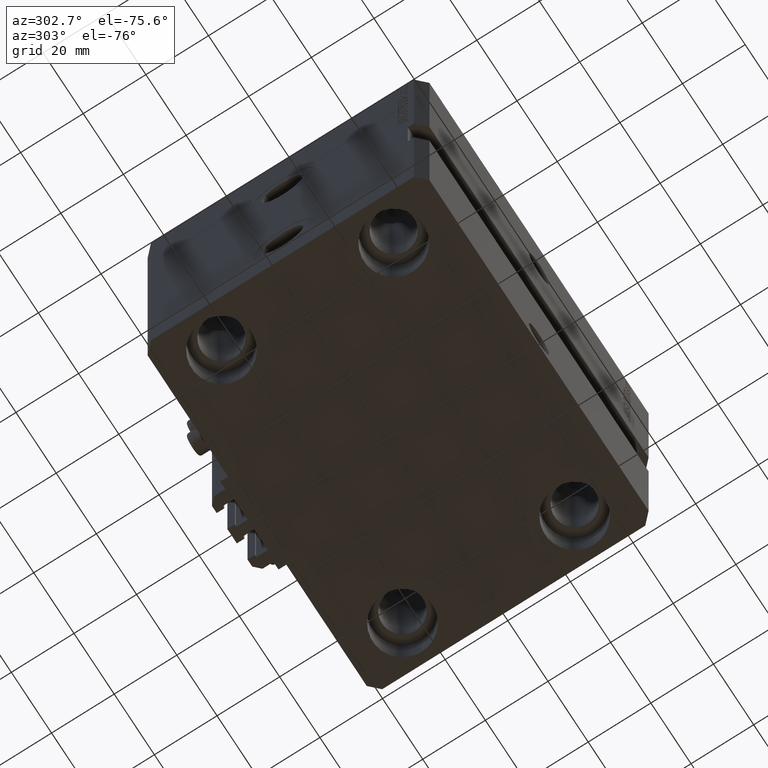
[diagram: clean part render]
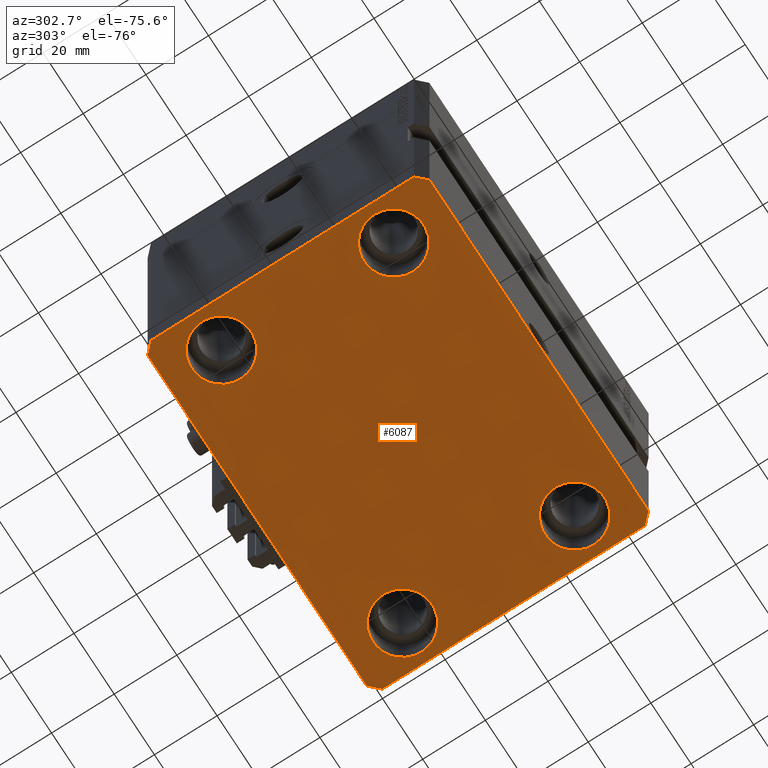
[diagram: same view with one face highlighted and labeled with its STEP entity id]
A machine part, auxiliary view. The second image highlights one B-rep face of the part: STEP entity #6087.
In plain terms, the highlighted planar face has unit normal (0, 0, 1).
Its self-contained STEP definition (entity closure, byte-faithful):
#302 = CARTESIAN_POINT ( 'NONE',  ( 57.50000000000000711, -41.99999999999998579, -105.0000000000000000 ) ) ;
#1211 = VECTOR ( 'NONE', #37455, 1000.000000000000000 ) ;
#1237 = CARTESIAN_POINT ( 'NONE',  ( 54.50000000000000711, -44.99999999999998579, -105.0000000000000000 ) ) ;
#1445 = VERTEX_POINT ( 'NONE', #13892 ) ;
#1541 = CIRCLE ( 'NONE', #40043, 9.500000000000001776 ) ;
#1914 = FACE_BOUND ( 'NONE', #43159, .T. ) ;
#2291 = DIRECTION ( 'NONE',  ( 1.000000000000000000, 0.000000000000000000, 0.000000000000000000 ) ) ;
#2296 = DIRECTION ( 'NONE',  ( -1.000000000000000000, -2.546383084002639322E-16, 0.000000000000000000 ) ) ;
#2750 = EDGE_CURVE ( 'NONE', #41896, #14180, #1541, .T. ) ;
#3483 = CARTESIAN_POINT ( 'NONE',  ( -35.50000000000000000, -27.49999999999999645, -105.0000000000000000 ) ) ;
#3873 = CARTESIAN_POINT ( 'NONE',  ( 45.00000000000000000, -27.49999999999999645, -105.0000000000000000 ) ) ;
#4046 = VECTOR ( 'NONE', #31954, 1000.000000000000000 ) ;
#4511 = DIRECTION ( 'NONE',  ( 1.000000000000000000, 1.273191542001326317E-16, 0.000000000000000000 ) ) ;
#5862 = CARTESIAN_POINT ( 'NONE',  ( 0.000000000000000000, 0.000000000000000000, -105.0000000000000000 ) ) ;
#6078 = EDGE_LOOP ( 'NONE', ( #17441, #47843 ) ) ;
#6087 = ADVANCED_FACE ( 'NONE', ( #1914, #28003, #6348, #17691, #28968 ), #10052, .F. ) ;
#6244 = DIRECTION ( 'NONE',  ( -0.000000000000000000, -0.000000000000000000, 1.000000000000000000 ) ) ;
#6348 = FACE_BOUND ( 'NONE', #6078, .T. ) ;
#6365 = AXIS2_PLACEMENT_3D ( 'NONE', #3873, #41261, #34131 ) ;
#6512 = EDGE_CURVE ( 'NONE', #14180, #41896, #43304, .T. ) ;
#6701 = CIRCLE ( 'NONE', #19258, 9.500000000000001776 ) ;
#7084 = CARTESIAN_POINT ( 'NONE',  ( -45.00000000000000000, -27.49999999999999645, -105.0000000000000000 ) ) ;
#7317 = CARTESIAN_POINT ( 'NONE',  ( -35.50000000000000000, 27.50000000000000355, -105.0000000000000000 ) ) ;
#7479 = ORIENTED_EDGE ( 'NONE', *, *, #27678, .T. ) ;
#8123 = DIRECTION ( 'NONE',  ( -0.000000000000000000, -0.000000000000000000, 1.000000000000000000 ) ) ;
#8273 = VERTEX_POINT ( 'NONE', #11953 ) ;
#8509 = CARTESIAN_POINT ( 'NONE',  ( 35.50000000000000000, -27.49999999999999645, -105.0000000000000000 ) ) ;
#8894 = CARTESIAN_POINT ( 'NONE',  ( 57.50000000000055422, 41.99999999999997868, -105.0000000000000000 ) ) ;
#9307 = DIRECTION ( 'NONE',  ( 1.000000000000000000, 0.000000000000000000, -0.000000000000000000 ) ) ;
#10052 = PLANE ( 'NONE',  #26806 ) ;
#10144 = ORIENTED_EDGE ( 'NONE', *, *, #30741, .F. ) ;
#10187 = DIRECTION ( 'NONE',  ( -0.000000000000000000, -0.000000000000000000, 1.000000000000000000 ) ) ;
#10259 = CARTESIAN_POINT ( 'NONE',  ( -54.50000000000000711, -45.00000000000000000, -105.0000000000000000 ) ) ;
#10686 = CARTESIAN_POINT ( 'NONE',  ( 54.50000000000058975, 45.00000000000002842, -105.0000000000000000 ) ) ;
#11414 = ORIENTED_EDGE ( 'NONE', *, *, #6512, .T. ) ;
#11501 = CARTESIAN_POINT ( 'NONE',  ( -54.50000000000000000, 27.50000000000000355, -105.0000000000000000 ) ) ;
#11953 = CARTESIAN_POINT ( 'NONE',  ( -57.49999999999998579, 42.00000000000000711, -105.0000000000000000 ) ) ;
#12078 = ORIENTED_EDGE ( 'NONE', *, *, #15752, .T. ) ;
#12282 = ORIENTED_EDGE ( 'NONE', *, *, #14394, .F. ) ;
#12925 = VECTOR ( 'NONE', #13927, 1000.000000000000000 ) ;
#13242 = ORIENTED_EDGE ( 'NONE', *, *, #35085, .F. ) ;
#13380 = EDGE_CURVE ( 'NONE', #29902, #32496, #45118, .T. ) ;
#13442 = LINE ( 'NONE', #39749, #12925 ) ;
#13780 = CARTESIAN_POINT ( 'NONE',  ( -45.00000000000000000, 27.50000000000000355, -105.0000000000000000 ) ) ;
#13892 = CARTESIAN_POINT ( 'NONE',  ( 54.50000000000000000, -27.49999999999999645, -105.0000000000000000 ) ) ;
#13927 = DIRECTION ( 'NONE',  ( -2.478176394252581141E-16, -1.000000000000000000, 0.000000000000000000 ) ) ;
#14180 = VERTEX_POINT ( 'NONE', #11501 ) ;
#14394 = EDGE_CURVE ( 'NONE', #8273, #31083, #13442, .T. ) ;
#15235 = VERTEX_POINT ( 'NONE', #34675 ) ;
#15600 = LINE ( 'NONE', #48379, #42963 ) ;
#15709 = EDGE_CURVE ( 'NONE', #37422, #37767, #17091, .T. ) ;
#15752 = EDGE_CURVE ( 'NONE', #1445, #35604, #6701, .T. ) ;
#17091 = LINE ( 'NONE', #10686, #26324 ) ;
#17221 = LINE ( 'NONE', #47216, #4046 ) ;
#17261 = CARTESIAN_POINT ( 'NONE',  ( -54.49999999999999289, 45.00000000000000000, -105.0000000000000000 ) ) ;
#17441 = ORIENTED_EDGE ( 'NONE', *, *, #40015, .T. ) ;
#17691 = FACE_BOUND ( 'NONE', #44034, .T. ) ;
#17914 = VERTEX_POINT ( 'NONE', #31284 ) ;
#18142 = DIRECTION ( 'NONE',  ( 0.7071067811865491270, -0.7071067811865459074, 0.000000000000000000 ) ) ;
#18482 = CARTESIAN_POINT ( 'NONE',  ( 54.50000000000000000, 27.50000000000001776, -105.0000000000000000 ) ) ;
#19258 = AXIS2_PLACEMENT_3D ( 'NONE', #24936, #10187, #40429 ) ;
#19756 = EDGE_CURVE ( 'NONE', #31083, #15235, #15600, .T. ) ;
#19816 = EDGE_CURVE ( 'NONE', #15235, #44971, #38214, .T. ) ;
#19828 = CARTESIAN_POINT ( 'NONE',  ( 57.50000000000055422, 41.99999999999997868, -105.0000000000000000 ) ) ;
#19849 = EDGE_LOOP ( 'NONE', ( #30818, #10144, #30823, #21122, #42790, #24295, #12282, #13242 ) ) ;
#21122 = ORIENTED_EDGE ( 'NONE', *, *, #35359, .F. ) ;
#22111 = DIRECTION ( 'NONE',  ( 1.000000000000000000, 0.000000000000000000, 0.000000000000000000 ) ) ;
#22138 = CIRCLE ( 'NONE', #37809, 9.500000000000001776 ) ;
#24268 = DIRECTION ( 'NONE',  ( 0.7071067811865483499, 0.7071067811865466846, 0.000000000000000000 ) ) ;
#24295 = ORIENTED_EDGE ( 'NONE', *, *, #19756, .F. ) ;
#24936 = CARTESIAN_POINT ( 'NONE',  ( 45.00000000000000000, -27.49999999999999645, -105.0000000000000000 ) ) ;
#24954 = VERTEX_POINT ( 'NONE', #18482 ) ;
#25431 = ORIENTED_EDGE ( 'NONE', *, *, #2750, .T. ) ;
#26324 = VECTOR ( 'NONE', #2296, 1000.000000000000000 ) ;
#26806 = AXIS2_PLACEMENT_3D ( 'NONE', #5862, #40049, #9307 ) ;
#27035 = AXIS2_PLACEMENT_3D ( 'NONE', #7084, #33161, #22111 ) ;
#27678 = EDGE_CURVE ( 'NONE', #32496, #29902, #38366, .T. ) ;
#27929 = DIRECTION ( 'NONE',  ( 1.000000000000000000, 0.000000000000000000, 0.000000000000000000 ) ) ;
#28003 = FACE_BOUND ( 'NONE', #36518, .T. ) ;
#28033 = DIRECTION ( 'NONE',  ( 1.000000000000000000, 0.000000000000000000, 0.000000000000000000 ) ) ;
#28968 = FACE_OUTER_BOUND ( 'NONE', #19849, .T. ) ;
#29173 = LINE ( 'NONE', #36567, #39296 ) ;
#29347 = CARTESIAN_POINT ( 'NONE',  ( 45.00000000000000000, 27.50000000000001776, -105.0000000000000000 ) ) ;
#29902 = VERTEX_POINT ( 'NONE', #3483 ) ;
#29960 = CARTESIAN_POINT ( 'NONE',  ( -54.50000000000000000, -27.49999999999999645, -105.0000000000000000 ) ) ;
#30386 = VECTOR ( 'NONE', #4511, 1000.000000000000000 ) ;
#30516 = AXIS2_PLACEMENT_3D ( 'NONE', #34919, #8123, #42544 ) ;
#30741 = EDGE_CURVE ( 'NONE', #48620, #37422, #38502, .T. ) ;
#30818 = ORIENTED_EDGE ( 'NONE', *, *, #15709, .F. ) ;
#30823 = ORIENTED_EDGE ( 'NONE', *, *, #48590, .F. ) ;
#31083 = VERTEX_POINT ( 'NONE', #38444 ) ;
#31284 = CARTESIAN_POINT ( 'NONE',  ( 35.50000000000000000, 27.50000000000001776, -105.0000000000000000 ) ) ;
#31827 = DIRECTION ( 'NONE',  ( -0.7071067811865376918, 0.7071067811865574537, 0.000000000000000000 ) ) ;
#31954 = DIRECTION ( 'NONE',  ( -0.7071067811865483499, -0.7071067811865466846, 0.000000000000000000 ) ) ;
#32496 = VERTEX_POINT ( 'NONE', #29960 ) ;
#33161 = DIRECTION ( 'NONE',  ( -0.000000000000000000, -0.000000000000000000, 1.000000000000000000 ) ) ;
#33530 = CARTESIAN_POINT ( 'NONE',  ( 57.50000000000000711, -41.99999999999998579, -105.0000000000000000 ) ) ;
#34131 = DIRECTION ( 'NONE',  ( 1.000000000000000000, 0.000000000000000000, 0.000000000000000000 ) ) ;
#34262 = EDGE_CURVE ( 'NONE', #35604, #1445, #40952, .T. ) ;
#34601 = CARTESIAN_POINT ( 'NONE',  ( 54.50000000000058975, 45.00000000000002842, -105.0000000000000000 ) ) ;
#34675 = CARTESIAN_POINT ( 'NONE',  ( -54.50000000000000711, -45.00000000000000000, -105.0000000000000000 ) ) ;
#34919 = CARTESIAN_POINT ( 'NONE',  ( -45.00000000000000000, -27.49999999999999645, -105.0000000000000000 ) ) ;
#35074 = CARTESIAN_POINT ( 'NONE',  ( 45.00000000000000000, 27.50000000000001776, -105.0000000000000000 ) ) ;
#35085 = EDGE_CURVE ( 'NONE', #37767, #8273, #17221, .T. ) ;
#35359 = EDGE_CURVE ( 'NONE', #44971, #39110, #29173, .T. ) ;
#35495 = AXIS2_PLACEMENT_3D ( 'NONE', #35074, #46636, #27929 ) ;
#35604 = VERTEX_POINT ( 'NONE', #8509 ) ;
#36427 = DIRECTION ( 'NONE',  ( 1.000000000000000000, 0.000000000000000000, 0.000000000000000000 ) ) ;
#36518 = EDGE_LOOP ( 'NONE', ( #39047, #12078 ) ) ;
#36567 = CARTESIAN_POINT ( 'NONE',  ( 54.50000000000000711, -44.99999999999998579, -105.0000000000000000 ) ) ;
#36968 = LINE ( 'NONE', #302, #1211 ) ;
#37422 = VERTEX_POINT ( 'NONE', #34601 ) ;
#37455 = DIRECTION ( 'NONE',  ( 6.443258625056715108E-15, 1.000000000000000000, 0.000000000000000000 ) ) ;
#37683 = ORIENTED_EDGE ( 'NONE', *, *, #13380, .T. ) ;
#37767 = VERTEX_POINT ( 'NONE', #17261 ) ;
#37809 = AXIS2_PLACEMENT_3D ( 'NONE', #29347, #6244, #2291 ) ;
#38214 = LINE ( 'NONE', #10259, #30386 ) ;
#38366 = CIRCLE ( 'NONE', #30516, 9.500000000000001776 ) ;
#38444 = CARTESIAN_POINT ( 'NONE',  ( -57.50000000000000711, -42.00000000000000711, -105.0000000000000000 ) ) ;
#38502 = LINE ( 'NONE', #19828, #41611 ) ;
#38627 = CIRCLE ( 'NONE', #35495, 9.500000000000001776 ) ;
#38938 = EDGE_CURVE ( 'NONE', #24954, #17914, #22138, .T. ) ;
#39047 = ORIENTED_EDGE ( 'NONE', *, *, #34262, .T. ) ;
#39110 = VERTEX_POINT ( 'NONE', #33530 ) ;
#39296 = VECTOR ( 'NONE', #24268, 1000.000000000000000 ) ;
#39749 = CARTESIAN_POINT ( 'NONE',  ( -57.49999999999998579, 42.00000000000000711, -105.0000000000000000 ) ) ;
#39842 = DIRECTION ( 'NONE',  ( -0.000000000000000000, -0.000000000000000000, 1.000000000000000000 ) ) ;
#39879 = CARTESIAN_POINT ( 'NONE',  ( -45.00000000000000000, 27.50000000000000355, -105.0000000000000000 ) ) ;
#40015 = EDGE_CURVE ( 'NONE', #17914, #24954, #38627, .T. ) ;
#40043 = AXIS2_PLACEMENT_3D ( 'NONE', #13780, #39842, #28033 ) ;
#40049 = DIRECTION ( 'NONE',  ( 0.000000000000000000, 0.000000000000000000, 1.000000000000000000 ) ) ;
#40429 = DIRECTION ( 'NONE',  ( 1.000000000000000000, 0.000000000000000000, 0.000000000000000000 ) ) ;
#40952 = CIRCLE ( 'NONE', #6365, 9.500000000000001776 ) ;
#41261 = DIRECTION ( 'NONE',  ( -0.000000000000000000, -0.000000000000000000, 1.000000000000000000 ) ) ;
#41611 = VECTOR ( 'NONE', #31827, 999.9999999999998863 ) ;
#41896 = VERTEX_POINT ( 'NONE', #7317 ) ;
#42544 = DIRECTION ( 'NONE',  ( 1.000000000000000000, 0.000000000000000000, 0.000000000000000000 ) ) ;
#42790 = ORIENTED_EDGE ( 'NONE', *, *, #19816, .F. ) ;
#42963 = VECTOR ( 'NONE', #18142, 1000.000000000000114 ) ;
#43159 = EDGE_LOOP ( 'NONE', ( #7479, #37683 ) ) ;
#43304 = CIRCLE ( 'NONE', #44121, 9.500000000000001776 ) ;
#44034 = EDGE_LOOP ( 'NONE', ( #11414, #25431 ) ) ;
#44121 = AXIS2_PLACEMENT_3D ( 'NONE', #39879, #44289, #36427 ) ;
#44289 = DIRECTION ( 'NONE',  ( -0.000000000000000000, -0.000000000000000000, 1.000000000000000000 ) ) ;
#44971 = VERTEX_POINT ( 'NONE', #1237 ) ;
#45118 = CIRCLE ( 'NONE', #27035, 9.500000000000001776 ) ;
#46636 = DIRECTION ( 'NONE',  ( -0.000000000000000000, -0.000000000000000000, 1.000000000000000000 ) ) ;
#47216 = CARTESIAN_POINT ( 'NONE',  ( -54.49999999999999289, 45.00000000000000000, -105.0000000000000000 ) ) ;
#47843 = ORIENTED_EDGE ( 'NONE', *, *, #38938, .T. ) ;
#48379 = CARTESIAN_POINT ( 'NONE',  ( -57.50000000000000711, -42.00000000000000711, -105.0000000000000000 ) ) ;
#48590 = EDGE_CURVE ( 'NONE', #39110, #48620, #36968, .T. ) ;
#48620 = VERTEX_POINT ( 'NONE', #8894 ) ;